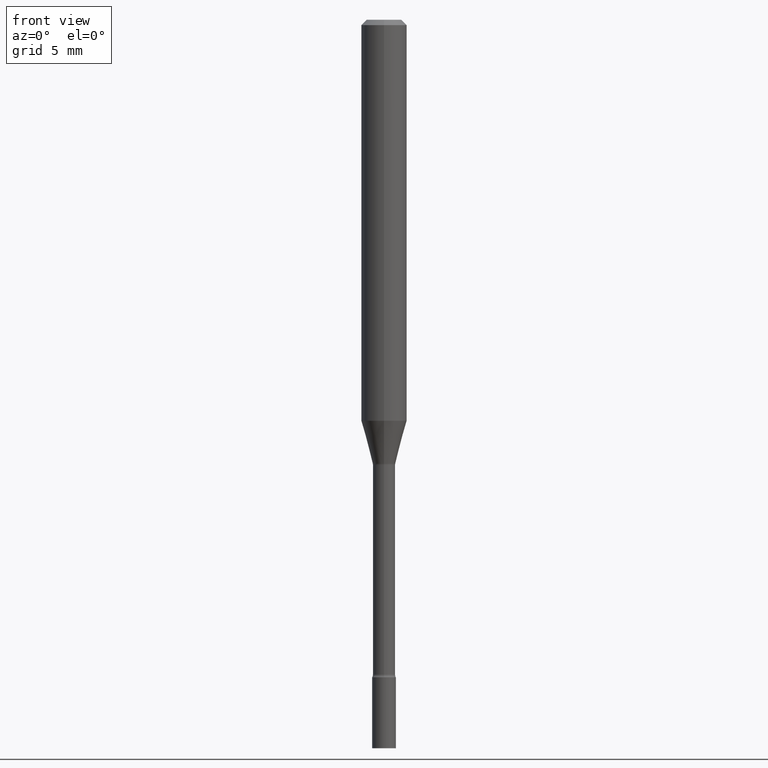
[diagram: clean part render]
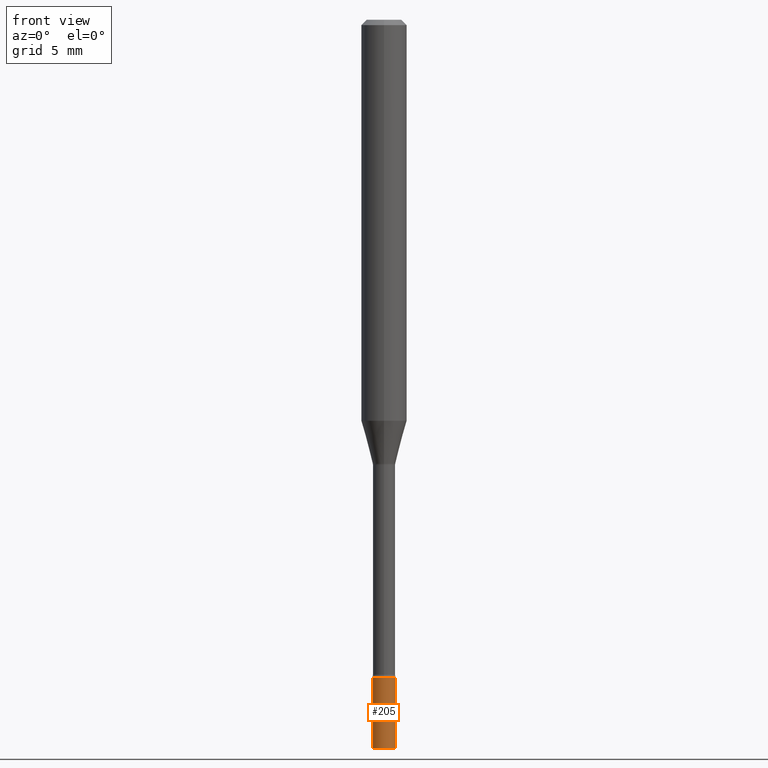
[diagram: same view with one face highlighted and labeled with its STEP entity id]
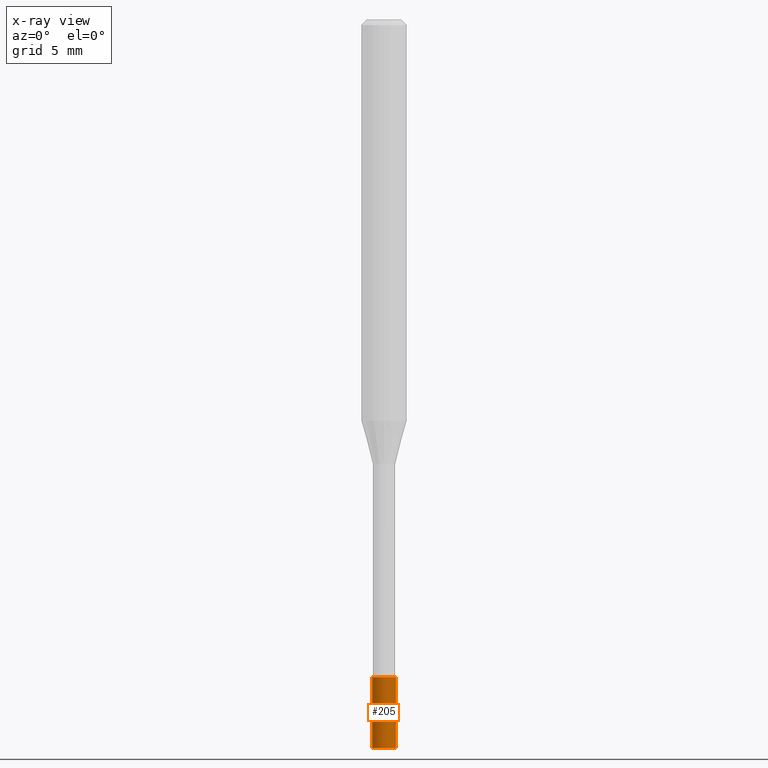
[diagram: x-ray of the same camera — body ghosted, the highlighted face saturated]
A machine part, front view. The second image highlights one B-rep face of the part: STEP entity #205.
The next image is the same camera in x-ray: the body ghosted, the highlighted face saturated — about 0% of this face is hidden behind the body in this view.
In plain terms, the highlighted cylindrical surface (edge-blend (fillet) strip) has radius 0.8255 mm, axis along (-0, 0, 1).
Its self-contained STEP definition (entity closure, byte-faithful):
#16 = LINE ( 'NONE', #300, #19 ) ;
#19 = VECTOR ( 'NONE', #100, 39.37007874015748143 ) ;
#23 = VERTEX_POINT ( 'NONE', #180 ) ;
#26 = AXIS2_PLACEMENT_3D ( 'NONE', #488, #81, #47 ) ;
#33 = CARTESIAN_POINT ( 'NONE',  ( 0.000000000000000000, 0.000000000000000000, 0.000000000000000000 ) ) ;
#38 = AXIS2_PLACEMENT_3D ( 'NONE', #33, #354, #148 ) ;
#44 = EDGE_CURVE ( 'NONE', #23, #246, #16, .T. ) ;
#47 = DIRECTION ( 'NONE',  ( 1.000000000000000000, -6.982962677686258033E-15, 0.000000000000000000 ) ) ;
#51 = ORIENTED_EDGE ( 'NONE', *, *, #44, .F. ) ;
#61 = CARTESIAN_POINT ( 'NONE',  ( 0.03250000000000000111, -6.529070103636681305E-15, -1.804999999999999938 ) ) ;
#81 = DIRECTION ( 'NONE',  ( -2.445468806185136597E-29, 3.491481338843145583E-15, 1.000000000000000000 ) ) ;
#82 = ORIENTED_EDGE ( 'NONE', *, *, #357, .T. ) ;
#87 = VECTOR ( 'NONE', #375, 39.37007874015748143 ) ;
#93 = CARTESIAN_POINT ( 'NONE',  ( 0.03250000000000000111, -7.209908964711093729E-15, -2.000000000000000000 ) ) ;
#100 = DIRECTION ( 'NONE',  ( -2.445468806185136877E-29, 3.491481338843145188E-15, 1.000000000000000000 ) ) ;
#118 = ORIENTED_EDGE ( 'NONE', *, *, #256, .F. ) ;
#119 = DIRECTION ( 'NONE',  ( -2.445468806185136597E-29, 3.491481338843145583E-15, 1.000000000000000000 ) ) ;
#148 = DIRECTION ( 'NONE',  ( 1.000000000000000000, -6.982962677686265922E-15, 4.876176775795935232E-29 ) ) ;
#171 = CARTESIAN_POINT ( 'NONE',  ( 0.03250000000000000111, -2.269462870248036484E-16, 1.584757452133678993E-30 ) ) ;
#180 = CARTESIAN_POINT ( 'NONE',  ( -0.03250000000000000111, -6.411616858027052188E-15, -2.000000000000000000 ) ) ;
#205 = ADVANCED_FACE ( 'NONE', ( #514 ), #233, .T. ) ;
#233 = CYLINDRICAL_SURFACE ( 'NONE', #38, 0.03250000000000000111 ) ;
#246 = VERTEX_POINT ( 'NONE', #327 ) ;
#252 = CIRCLE ( 'NONE', #26, 0.03250000000000000111 ) ;
#256 = EDGE_CURVE ( 'NONE', #246, #414, #499, .T. ) ;
#285 = DIRECTION ( 'NONE',  ( 1.000000000000000000, -6.982962677686258033E-15, 0.000000000000000000 ) ) ;
#299 = LINE ( 'NONE', #171, #87 ) ;
#300 = CARTESIAN_POINT ( 'NONE',  ( -0.03250000000000000111, 2.309263891220325683E-16, -1.598653904332844407E-30 ) ) ;
#327 = CARTESIAN_POINT ( 'NONE',  ( -0.03250000000000000111, -6.411616858027052188E-15, -1.804999999999999938 ) ) ;
#335 = AXIS2_PLACEMENT_3D ( 'NONE', #481, #119, #285 ) ;
#354 = DIRECTION ( 'NONE',  ( -2.445468806185136597E-29, 3.491481338843145583E-15, 1.000000000000000000 ) ) ;
#355 = EDGE_LOOP ( 'NONE', ( #51, #82, #406, #118 ) ) ;
#357 = EDGE_CURVE ( 'NONE', #23, #496, #252, .T. ) ;
#375 = DIRECTION ( 'NONE',  ( -2.445468806185136877E-29, 3.491481338843145188E-15, 1.000000000000000000 ) ) ;
#406 = ORIENTED_EDGE ( 'NONE', *, *, #446, .T. ) ;
#414 = VERTEX_POINT ( 'NONE', #61 ) ;
#446 = EDGE_CURVE ( 'NONE', #496, #414, #299, .T. ) ;
#481 = CARTESIAN_POINT ( 'NONE',  ( 4.414071195164171423E-29, -6.302123816611877952E-15, -1.804999999999999938 ) ) ;
#488 = CARTESIAN_POINT ( 'NONE',  ( 4.890937612370273194E-29, -6.982962677686291165E-15, -2.000000000000000000 ) ) ;
#496 = VERTEX_POINT ( 'NONE', #93 ) ;
#499 = CIRCLE ( 'NONE', #335, 0.03250000000000000111 ) ;
#514 = FACE_OUTER_BOUND ( 'NONE', #355, .T. ) ;